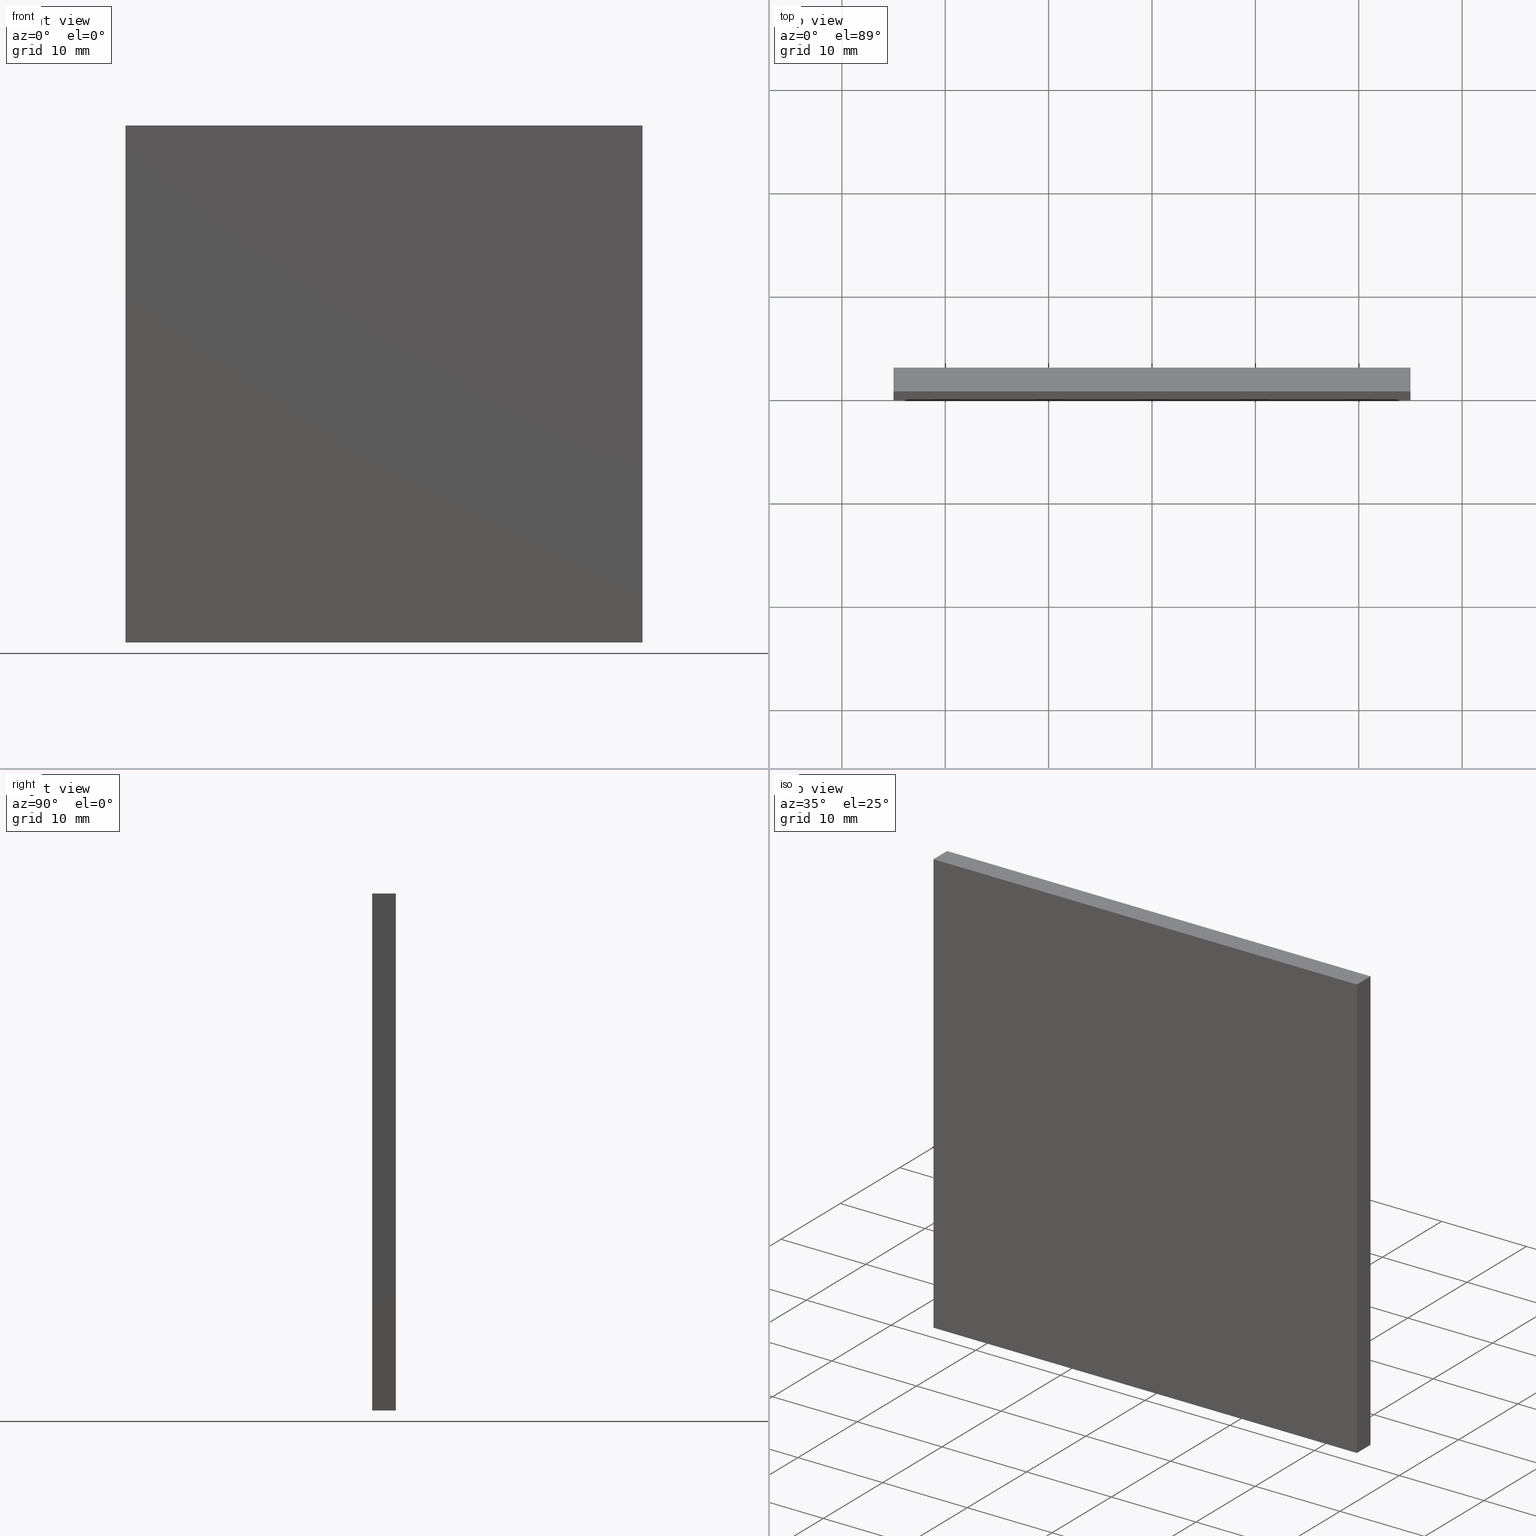
[diagram: canonical four-view strip — front | top / right | iso, engineering-drawing reading convention]
A machine part, canonical four-view strip (front | top / right | iso — engineering-drawing reading convention). The complete STEP part file that produces these views, byte-faithful:
ISO-10303-21;
HEADER;
FILE_DESCRIPTION (( 'STEP AP214' ),
    '1' );
FILE_NAME ('248618.STEP',
    '2019-08-06T06:47:44',
    ( 'user' ),
    ( '΢���й�' ),
    'SwSTEP 2.0',
    'SolidWorks 2016',
    '' );
FILE_SCHEMA (( 'AUTOMOTIVE_DESIGN' ));
ENDSEC;

DATA;
#1 =( NAMED_UNIT ( * ) PLANE_ANGLE_UNIT ( ) SI_UNIT ( $, .RADIAN. ) );
#2 = LINE ( 'NONE', #202, #191 ) ;
#3 = AXIS2_PLACEMENT_3D ( 'NONE', #125, #147, #182 ) ;
#4 = DIRECTION ( 'NONE',  ( 0.0000000000000000000, -1.000000000000000000, 0.0000000000000000000 ) ) ;
#5 = LINE ( 'NONE', #37, #132 ) ;
#6 = VERTEX_POINT ( 'NONE', #197 ) ;
#7 = DIRECTION ( 'NONE',  ( -0.0000000000000000000, -0.0000000000000000000, 1.000000000000000000 ) ) ;
#8 = EDGE_LOOP ( 'NONE', ( #187, #40, #183, #45 ) ) ;
#9 = PRODUCT_DEFINITION_CONTEXT ( 'detailed design', #33, 'design' ) ;
#10 = LINE ( 'NONE', #79, #86 ) ;
#11 = ORIENTED_EDGE ( 'NONE', *, *, #82, .T. ) ;
#12 = ORIENTED_EDGE ( 'NONE', *, *, #172, .T. ) ;
#13 = PRODUCT_DEFINITION ( 'δ֪', '', #49, #9 ) ;
#14 = ORIENTED_EDGE ( 'NONE', *, *, #66, .F. ) ;
#15 = PLANE ( 'NONE',  #69 ) ;
#16 = VECTOR ( 'NONE', #91, 1000.000000000000000 ) ;
#17 = DIRECTION ( 'NONE',  ( -0.0000000000000000000, -0.0000000000000000000, 1.000000000000000000 ) ) ;
#18 = PRESENTATION_LAYER_ASSIGNMENT (  '', '', ( #102 ) ) ;
#19 = DIRECTION ( 'NONE',  ( 0.0000000000000000000, 0.0000000000000000000, 1.000000000000000000 ) ) ;
#20 = CARTESIAN_POINT ( 'NONE',  ( 24.99999999999999600, 0.0000000000000000000, 25.00000000000000400 ) ) ;
#21 = ADVANCED_FACE ( 'NONE', ( #98 ), #199, .F. ) ;
#22 = DIRECTION ( 'NONE',  ( 0.0000000000000000000, -1.000000000000000000, 0.0000000000000000000 ) ) ;
#23 = SURFACE_SIDE_STYLE ('',( #141 ) ) ;
#24 = CARTESIAN_POINT ( 'NONE',  ( -25.00000000000000400, 2.299999999999999800, -24.99999999999999600 ) ) ;
#25 = PRESENTATION_STYLE_ASSIGNMENT (( #110 ) ) ;
#26 = VERTEX_POINT ( 'NONE', #170 ) ;
#27 = CARTESIAN_POINT ( 'NONE',  ( 0.0000000000000000000, 0.0000000000000000000, 0.0000000000000000000 ) ) ;
#28 = PRODUCT_RELATED_PRODUCT_CATEGORY ( 'part', '', ( #53 ) ) ;
#29 = CARTESIAN_POINT ( 'NONE',  ( -25.00000000000000400, 0.0000000000000000000, -24.99999999999999600 ) ) ;
#30 = CARTESIAN_POINT ( 'NONE',  ( -25.00000000000000400, 2.299999999999999800, -24.99999999999999600 ) ) ;
#31 = DIRECTION ( 'NONE',  ( -0.0000000000000000000, -1.000000000000000000, -0.0000000000000000000 ) ) ;
#32 = ORIENTED_EDGE ( 'NONE', *, *, #84, .F. ) ;
#33 = APPLICATION_CONTEXT ( 'automotive_design' ) ;
#34 = DIRECTION ( 'NONE',  ( 1.000000000000000000, 0.0000000000000000000, 0.0000000000000000000 ) ) ;
#35 = ADVANCED_FACE ( 'NONE', ( #52 ), #15, .T. ) ;
#36 = STYLED_ITEM ( 'NONE', ( #25 ), #101 ) ;
#37 = CARTESIAN_POINT ( 'NONE',  ( -25.00000000000000400, 2.299999999999999800, -24.99999999999999600 ) ) ;
#38 = LINE ( 'NONE', #30, #43 ) ;
#39 = ORIENTED_EDGE ( 'NONE', *, *, #143, .T. ) ;
#40 = ORIENTED_EDGE ( 'NONE', *, *, #145, .F. ) ;
#41 = FACE_OUTER_BOUND ( 'NONE', #8, .T. ) ;
#42 = SHAPE_DEFINITION_REPRESENTATION ( #70, #101 ) ;
#43 = VECTOR ( 'NONE', #58, 1000.000000000000000 ) ;
#44 = PRODUCT_CONTEXT ( 'NONE', #114, 'mechanical' ) ;
#45 = ORIENTED_EDGE ( 'NONE', *, *, #128, .T. ) ;
#46 = DIRECTION ( 'NONE',  ( 0.0000000000000000000, -0.0000000000000000000, -1.000000000000000000 ) ) ;
#47 = ORIENTED_EDGE ( 'NONE', *, *, #163, .T. ) ;
#48 = CARTESIAN_POINT ( 'NONE',  ( 24.99999999999999600, 2.299999999999999800, 25.00000000000000400 ) ) ;
#49 = PRODUCT_DEFINITION_FORMATION_WITH_SPECIFIED_SOURCE ( '�κ�', '', #53, .NOT_KNOWN. ) ;
#50 = FACE_OUTER_BOUND ( 'NONE', #87, .T. ) ;
#51 = VERTEX_POINT ( 'NONE', #151 ) ;
#52 = FACE_OUTER_BOUND ( 'NONE', #137, .T. ) ;
#53 = PRODUCT ( '248618', '248618', '', ( #44 ) ) ;
#54 = CARTESIAN_POINT ( 'NONE',  ( -25.00000000000000400, 2.299999999999999800, 25.00000000000000400 ) ) ;
#55 = ORIENTED_EDGE ( 'NONE', *, *, #145, .T. ) ;
#56 = UNCERTAINTY_MEASURE_WITH_UNIT (LENGTH_MEASURE( 1.000000000000000100E-005 ), #134, 'distance_accuracy_value', 'NONE');
#57 =( NAMED_UNIT ( * ) SI_UNIT ( $, .STERADIAN. ) SOLID_ANGLE_UNIT ( ) );
#58 = DIRECTION ( 'NONE',  ( -0.0000000000000000000, -1.000000000000000000, -0.0000000000000000000 ) ) ;
#59 = AXIS2_PLACEMENT_3D ( 'NONE', #161, #120, #131 ) ;
#60 = VERTEX_POINT ( 'NONE', #189 ) ;
#61 = ORIENTED_EDGE ( 'NONE', *, *, #105, .T. ) ;
#62 = AXIS2_PLACEMENT_3D ( 'NONE', #94, #19, #34 ) ;
#63 = EDGE_LOOP ( 'NONE', ( #12, #39, #126, #61 ) ) ;
#64 = DIRECTION ( 'NONE',  ( 0.0000000000000000000, 0.0000000000000000000, -1.000000000000000000 ) ) ;
#65 = DIRECTION ( 'NONE',  ( 1.000000000000000000, 0.0000000000000000000, 0.0000000000000000000 ) ) ;
#66 = EDGE_CURVE ( 'NONE', #92, #117, #76, .T. ) ;
#67 = CARTESIAN_POINT ( 'NONE',  ( 24.99999999999999600, 0.0000000000000000000, 25.00000000000000400 ) ) ;
#68 = SURFACE_STYLE_FILL_AREA ( #174 ) ;
#69 = AXIS2_PLACEMENT_3D ( 'NONE', #27, #4, #46 ) ;
#70 = PRODUCT_DEFINITION_SHAPE ( 'NONE', 'NONE',  #13 ) ;
#71 = FACE_OUTER_BOUND ( 'NONE', #63, .T. ) ;
#72 =( NAMED_UNIT ( * ) SI_UNIT ( $, .STERADIAN. ) SOLID_ANGLE_UNIT ( ) );
#73 = UNCERTAINTY_MEASURE_WITH_UNIT (LENGTH_MEASURE( 1.000000000000000100E-005 ), #153, 'distance_accuracy_value', 'NONE');
#74 = DIRECTION ( 'NONE',  ( 1.000000000000000000, 0.0000000000000000000, 0.0000000000000000000 ) ) ;
#75 = ADVANCED_FACE ( 'NONE', ( #162 ), #129, .F. ) ;
#76 = LINE ( 'NONE', #54, #136 ) ;
#77 = FILL_AREA_STYLE ('',( #89 ) ) ;
#78 = SURFACE_STYLE_USAGE ( .BOTH. , #122 ) ;
#79 = CARTESIAN_POINT ( 'NONE',  ( 24.99999999999999600, 2.299999999999999800, -24.99999999999999600 ) ) ;
#80 = DIRECTION ( 'NONE',  ( 0.0000000000000000000, 0.0000000000000000000, 1.000000000000000000 ) ) ;
#81 = MECHANICAL_DESIGN_GEOMETRIC_PRESENTATION_REPRESENTATION (  '', ( #36 ), #193 ) ;
#82 = EDGE_CURVE ( 'NONE', #60, #115, #2, .T. ) ;
#83 = PRESENTATION_LAYER_ASSIGNMENT (  '', '', ( #36 ) ) ;
#84 = EDGE_CURVE ( 'NONE', #115, #51, #112, .T. ) ;
#85 = PRESENTATION_STYLE_ASSIGNMENT (( #78 ) ) ;
#86 = VECTOR ( 'NONE', #31, 1000.000000000000000 ) ;
#87 = EDGE_LOOP ( 'NONE', ( #47, #124, #156, #55 ) ) ;
#88 = LINE ( 'NONE', #194, #135 ) ;
#89 = FILL_AREA_STYLE_COLOUR ( '', #180 ) ;
#90 =( GEOMETRIC_REPRESENTATION_CONTEXT ( 3 ) GLOBAL_UNCERTAINTY_ASSIGNED_CONTEXT ( ( #73 ) ) GLOBAL_UNIT_ASSIGNED_CONTEXT ( ( #153, #107, #72 ) ) REPRESENTATION_CONTEXT ( 'NONE', 'WORKASPACE' ) );
#91 = DIRECTION ( 'NONE',  ( -0.0000000000000000000, -1.000000000000000000, -0.0000000000000000000 ) ) ;
#92 = VERTEX_POINT ( 'NONE', #149 ) ;
#93 = LINE ( 'NONE', #123, #185 ) ;
#94 = CARTESIAN_POINT ( 'NONE',  ( 0.0000000000000000000, 0.0000000000000000000, 0.0000000000000000000 ) ) ;
#95 = DIRECTION ( 'NONE',  ( -1.000000000000000000, -0.0000000000000000000, -0.0000000000000000000 ) ) ;
#96 = ADVANCED_FACE ( 'NONE', ( #50 ), #164, .F. ) ;
#97 = EDGE_CURVE ( 'NONE', #117, #60, #93, .T. ) ;
#98 = FACE_OUTER_BOUND ( 'NONE', #157, .T. ) ;
#99 = ORIENTED_EDGE ( 'NONE', *, *, #116, .F. ) ;
#100 = LINE ( 'NONE', #29, #175 ) ;
#101 = ADVANCED_BREP_SHAPE_REPRESENTATION ( '248618', ( #178, #62 ), #168 ) ;
#102 = STYLED_ITEM ( 'NONE', ( #85 ), #178 ) ;
#103 = ORIENTED_EDGE ( 'NONE', *, *, #82, .F. ) ;
#104 = DIRECTION ( 'NONE',  ( 1.000000000000000000, 0.0000000000000000000, -0.0000000000000000000 ) ) ;
#105 = EDGE_CURVE ( 'NONE', #117, #26, #139, .T. ) ;
#106 = DIRECTION ( 'NONE',  ( 0.0000000000000000000, 0.0000000000000000000, -1.000000000000000000 ) ) ;
#107 =( NAMED_UNIT ( * ) PLANE_ANGLE_UNIT ( ) SI_UNIT ( $, .RADIAN. ) );
#108 = VECTOR ( 'NONE', #106, 1000.000000000000000 ) ;
#109 = ORIENTED_EDGE ( 'NONE', *, *, #128, .F. ) ;
#110 = SURFACE_STYLE_USAGE ( .BOTH. , #23 ) ;
#111 = PLANE ( 'NONE',  #3 ) ;
#112 = LINE ( 'NONE', #20, #155 ) ;
#113 = APPLICATION_PROTOCOL_DEFINITION ( 'draft international standard', 'automotive_design', 1998, #114 ) ;
#114 = APPLICATION_CONTEXT ( 'automotive_design' ) ;
#115 = VERTEX_POINT ( 'NONE', #67 ) ;
#116 = EDGE_CURVE ( 'NONE', #188, #60, #88, .T. ) ;
#117 = VERTEX_POINT ( 'NONE', #179 ) ;
#118 = DIRECTION ( 'NONE',  ( 1.000000000000000000, -0.0000000000000000000, 0.0000000000000000000 ) ) ;
#119 = VECTOR ( 'NONE', #65, 1000.000000000000000 ) ;
#120 = DIRECTION ( 'NONE',  ( 0.0000000000000000000, 0.0000000000000000000, -1.000000000000000000 ) ) ;
#121 = UNCERTAINTY_MEASURE_WITH_UNIT (LENGTH_MEASURE( 1.000000000000000100E-005 ), #144, 'distance_accuracy_value', 'NONE');
#122 = SURFACE_SIDE_STYLE ('',( #68 ) ) ;
#123 = CARTESIAN_POINT ( 'NONE',  ( -25.00000000000000400, 2.299999999999999800, 25.00000000000000400 ) ) ;
#124 = ORIENTED_EDGE ( 'NONE', *, *, #154, .F. ) ;
#125 = CARTESIAN_POINT ( 'NONE',  ( 24.99999999999999600, 2.299999999999999800, 25.00000000000000400 ) ) ;
#126 = ORIENTED_EDGE ( 'NONE', *, *, #66, .T. ) ;
#127 =( NAMED_UNIT ( * ) SI_UNIT ( $, .STERADIAN. ) SOLID_ANGLE_UNIT ( ) );
#128 = EDGE_CURVE ( 'NONE', #26, #115, #167, .T. ) ;
#129 = PLANE ( 'NONE',  #59 ) ;
#130 = AXIS2_PLACEMENT_3D ( 'NONE', #140, #118, #64 ) ;
#131 = DIRECTION ( 'NONE',  ( -1.000000000000000000, 0.0000000000000000000, -0.0000000000000000000 ) ) ;
#132 = VECTOR ( 'NONE', #95, 1000.000000000000000 ) ;
#133 = ORIENTED_EDGE ( 'NONE', *, *, #105, .F. ) ;
#134 =( LENGTH_UNIT ( ) NAMED_UNIT ( * ) SI_UNIT ( .MILLI., .METRE. ) );
#135 = VECTOR ( 'NONE', #7, 1000.000000000000000 ) ;
#136 = VECTOR ( 'NONE', #17, 1000.000000000000000 ) ;
#137 = EDGE_LOOP ( 'NONE', ( #32, #103, #99, #166 ) ) ;
#138 = ORIENTED_EDGE ( 'NONE', *, *, #97, .T. ) ;
#139 = LINE ( 'NONE', #171, #119 ) ;
#140 = CARTESIAN_POINT ( 'NONE',  ( -25.00000000000000400, 2.299999999999999800, 25.00000000000000400 ) ) ;
#141 = SURFACE_STYLE_FILL_AREA ( #77 ) ;
#142 = APPLICATION_PROTOCOL_DEFINITION ( 'draft international standard', 'automotive_design', 1998, #33 ) ;
#143 = EDGE_CURVE ( 'NONE', #6, #92, #5, .T. ) ;
#144 =( LENGTH_UNIT ( ) NAMED_UNIT ( * ) SI_UNIT ( .MILLI., .METRE. ) );
#145 = EDGE_CURVE ( 'NONE', #6, #51, #10, .T. ) ;
#146 = DIRECTION ( 'NONE',  ( 0.0000000000000000000, 0.0000000000000000000, -1.000000000000000000 ) ) ;
#147 = DIRECTION ( 'NONE',  ( -1.000000000000000000, 0.0000000000000000000, 0.0000000000000000000 ) ) ;
#148 = DIRECTION ( 'NONE',  ( -1.000000000000000000, -0.0000000000000000000, -0.0000000000000000000 ) ) ;
#149 = CARTESIAN_POINT ( 'NONE',  ( -25.00000000000000400, 2.299999999999999800, -24.99999999999999600 ) ) ;
#150 = AXIS2_PLACEMENT_3D ( 'NONE', #181, #22, #177 ) ;
#151 = CARTESIAN_POINT ( 'NONE',  ( 24.99999999999999600, 0.0000000000000000000, -24.99999999999999600 ) ) ;
#152 = ADVANCED_FACE ( 'NONE', ( #71 ), #201, .F. ) ;
#153 =( LENGTH_UNIT ( ) NAMED_UNIT ( * ) SI_UNIT ( .MILLI., .METRE. ) );
#154 = EDGE_CURVE ( 'NONE', #92, #188, #38, .T. ) ;
#155 = VECTOR ( 'NONE', #146, 1000.000000000000000 ) ;
#156 = ORIENTED_EDGE ( 'NONE', *, *, #143, .F. ) ;
#157 = EDGE_LOOP ( 'NONE', ( #198, #159, #14, #169 ) ) ;
#158 = MECHANICAL_DESIGN_GEOMETRIC_PRESENTATION_REPRESENTATION (  '', ( #102 ), #90 ) ;
#159 = ORIENTED_EDGE ( 'NONE', *, *, #97, .F. ) ;
#160 = ADVANCED_FACE ( 'NONE', ( #41 ), #111, .F. ) ;
#161 = CARTESIAN_POINT ( 'NONE',  ( -25.00000000000000400, 2.299999999999999800, 25.00000000000000400 ) ) ;
#162 = FACE_OUTER_BOUND ( 'NONE', #196, .T. ) ;
#163 = EDGE_CURVE ( 'NONE', #51, #188, #100, .T. ) ;
#164 = PLANE ( 'NONE',  #173 ) ;
#165 = CLOSED_SHELL ( 'NONE', ( #160, #96, #21, #75, #152, #35 ) ) ;
#166 = ORIENTED_EDGE ( 'NONE', *, *, #163, .F. ) ;
#167 = LINE ( 'NONE', #200, #16 ) ;
#168 =( GEOMETRIC_REPRESENTATION_CONTEXT ( 3 ) GLOBAL_UNCERTAINTY_ASSIGNED_CONTEXT ( ( #56 ) ) GLOBAL_UNIT_ASSIGNED_CONTEXT ( ( #134, #1, #127 ) ) REPRESENTATION_CONTEXT ( 'NONE', 'WORKASPACE' ) );
#169 = ORIENTED_EDGE ( 'NONE', *, *, #154, .T. ) ;
#170 = CARTESIAN_POINT ( 'NONE',  ( 24.99999999999999600, 2.299999999999999800, 25.00000000000000400 ) ) ;
#171 = CARTESIAN_POINT ( 'NONE',  ( -25.00000000000000400, 2.299999999999999800, 25.00000000000000400 ) ) ;
#172 = EDGE_CURVE ( 'NONE', #26, #6, #186, .T. ) ;
#173 = AXIS2_PLACEMENT_3D ( 'NONE', #24, #80, #104 ) ;
#174 = FILL_AREA_STYLE ('',( #184 ) ) ;
#175 = VECTOR ( 'NONE', #148, 1000.000000000000000 ) ;
#176 = CARTESIAN_POINT ( 'NONE',  ( -25.00000000000000400, 0.0000000000000000000, -24.99999999999999600 ) ) ;
#177 = DIRECTION ( 'NONE',  ( 0.0000000000000000000, -0.0000000000000000000, -1.000000000000000000 ) ) ;
#178 = MANIFOLD_SOLID_BREP ( '͹̨-����1', #165 ) ;
#179 = CARTESIAN_POINT ( 'NONE',  ( -25.00000000000000400, 2.299999999999999800, 25.00000000000000400 ) ) ;
#180 = COLOUR_RGB ( '',1.000000000000000000, 1.000000000000000000, 1.000000000000000000 ) ;
#181 = CARTESIAN_POINT ( 'NONE',  ( 0.0000000000000000000, 2.299999999999999800, 0.0000000000000000000 ) ) ;
#182 = DIRECTION ( 'NONE',  ( 0.0000000000000000000, 0.0000000000000000000, 1.000000000000000000 ) ) ;
#183 = ORIENTED_EDGE ( 'NONE', *, *, #172, .F. ) ;
#184 = FILL_AREA_STYLE_COLOUR ( '', #195 ) ;
#185 = VECTOR ( 'NONE', #190, 1000.000000000000000 ) ;
#186 = LINE ( 'NONE', #48, #108 ) ;
#187 = ORIENTED_EDGE ( 'NONE', *, *, #84, .T. ) ;
#188 = VERTEX_POINT ( 'NONE', #176 ) ;
#189 = CARTESIAN_POINT ( 'NONE',  ( -25.00000000000000400, 0.0000000000000000000, 25.00000000000000400 ) ) ;
#190 = DIRECTION ( 'NONE',  ( -0.0000000000000000000, -1.000000000000000000, -0.0000000000000000000 ) ) ;
#191 = VECTOR ( 'NONE', #74, 1000.000000000000000 ) ;
#192 =( NAMED_UNIT ( * ) PLANE_ANGLE_UNIT ( ) SI_UNIT ( $, .RADIAN. ) );
#193 =( GEOMETRIC_REPRESENTATION_CONTEXT ( 3 ) GLOBAL_UNCERTAINTY_ASSIGNED_CONTEXT ( ( #121 ) ) GLOBAL_UNIT_ASSIGNED_CONTEXT ( ( #144, #192, #57 ) ) REPRESENTATION_CONTEXT ( 'NONE', 'WORKASPACE' ) );
#194 = CARTESIAN_POINT ( 'NONE',  ( -25.00000000000000400, 0.0000000000000000000, 25.00000000000000400 ) ) ;
#195 = COLOUR_RGB ( '',1.000000000000000000, 1.000000000000000000, 1.000000000000000000 ) ;
#196 = EDGE_LOOP ( 'NONE', ( #11, #109, #133, #138 ) ) ;
#197 = CARTESIAN_POINT ( 'NONE',  ( 24.99999999999999600, 2.299999999999999800, -24.99999999999999600 ) ) ;
#198 = ORIENTED_EDGE ( 'NONE', *, *, #116, .T. ) ;
#199 = PLANE ( 'NONE',  #130 ) ;
#200 = CARTESIAN_POINT ( 'NONE',  ( 24.99999999999999600, 2.299999999999999800, 25.00000000000000400 ) ) ;
#201 = PLANE ( 'NONE',  #150 ) ;
#202 = CARTESIAN_POINT ( 'NONE',  ( -25.00000000000000400, 0.0000000000000000000, 25.00000000000000400 ) ) ;
ENDSEC;
END-ISO-10303-21;
